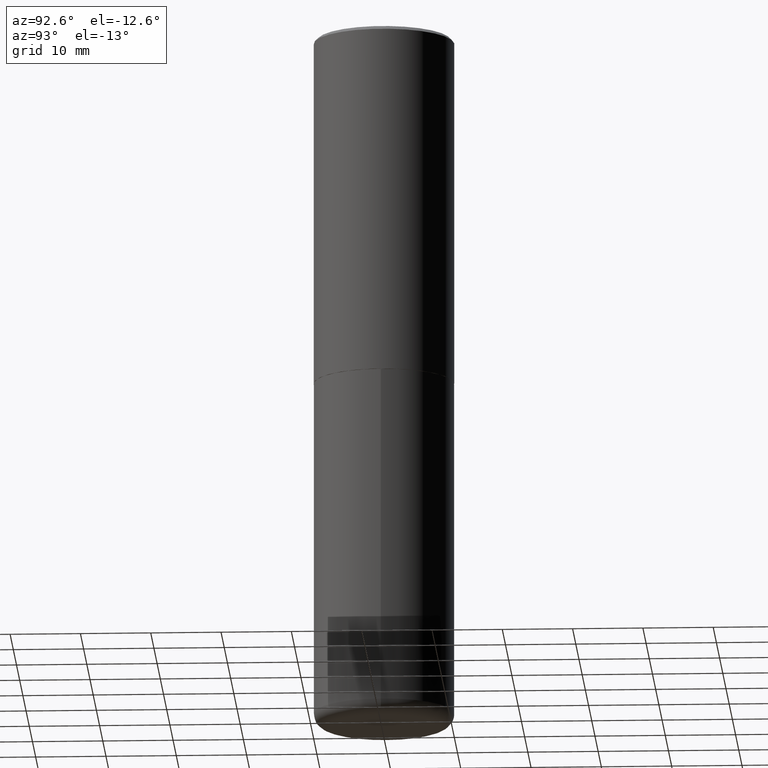
[diagram: clean part render]
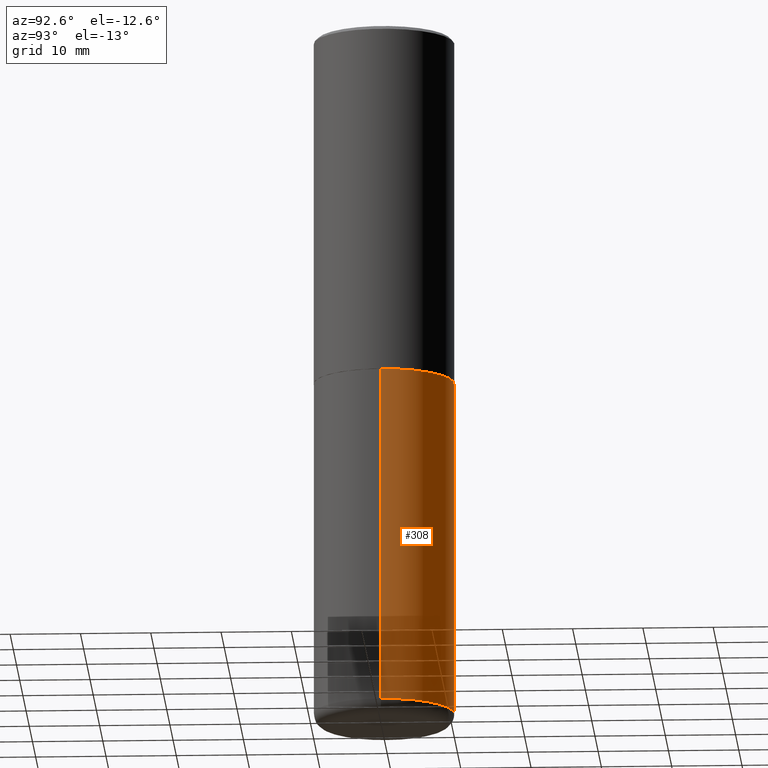
[diagram: same view with one face highlighted and labeled with its STEP entity id]
A machine part, auxiliary view. The second image highlights one B-rep face of the part: STEP entity #308.
In plain terms, the highlighted cylindrical surface (partial cylindrical patch) has radius 10 mm, axis along (-0, 0, 1).
Its self-contained STEP definition (entity closure, byte-faithful):
#31 = EDGE_CURVE ( 'NONE', #399, #339, #192, .T. ) ;
#39 = DIRECTION ( 'NONE',  ( 1.000000000000000000, -6.982962677686265922E-15, 4.876176775795935793E-29 ) ) ;
#51 = VERTEX_POINT ( 'NONE', #88 ) ;
#63 = EDGE_CURVE ( 'NONE', #260, #51, #276, .T. ) ;
#70 = AXIS2_PLACEMENT_3D ( 'NONE', #100, #142, #270 ) ;
#83 = DIRECTION ( 'NONE',  ( 1.000000000000000000, -6.982962677686267499E-15, 0.000000000000000000 ) ) ;
#88 = CARTESIAN_POINT ( 'NONE',  ( -0.3937000000000001054, -1.067377569897099292E-14, -3.858300000000000285 ) ) ;
#100 = CARTESIAN_POINT ( 'NONE',  ( 4.813905344975441835E-29, -6.872981015512731707E-15, -1.968500000000000139 ) ) ;
#104 = LINE ( 'NONE', #297, #134 ) ;
#107 = LINE ( 'NONE', #303, #197 ) ;
#134 = VECTOR ( 'NONE', #175, 39.37007874015748143 ) ;
#142 = DIRECTION ( 'NONE',  ( -2.445468806185136597E-29, 3.491481338843145583E-15, 1.000000000000000000 ) ) ;
#150 = DIRECTION ( 'NONE',  ( -2.445468806185136877E-29, 3.491481338843145188E-15, 1.000000000000000000 ) ) ;
#175 = DIRECTION ( 'NONE',  ( -2.445468806185136877E-29, 3.491481338843145188E-15, 1.000000000000000000 ) ) ;
#177 = ORIENTED_EDGE ( 'NONE', *, *, #354, .F. ) ;
#192 = CIRCLE ( 'NONE', #70, 0.3937000000000000499 ) ;
#193 = ORIENTED_EDGE ( 'NONE', *, *, #400, .T. ) ;
#196 = ORIENTED_EDGE ( 'NONE', *, *, #63, .T. ) ;
#197 = VECTOR ( 'NONE', #150, 39.37007874015748143 ) ;
#214 = CARTESIAN_POINT ( 'NONE',  ( 0.000000000000000000, 0.000000000000000000, 0.000000000000000000 ) ) ;
#241 = AXIS2_PLACEMENT_3D ( 'NONE', #250, #378, #83 ) ;
#250 = CARTESIAN_POINT ( 'NONE',  ( 9.435352294904112142E-29, -1.347118244965850850E-14, -3.858300000000000285 ) ) ;
#260 = VERTEX_POINT ( 'NONE', #388 ) ;
#270 = DIRECTION ( 'NONE',  ( 1.000000000000000000, -6.982962677686265133E-15, 0.000000000000000000 ) ) ;
#276 = CIRCLE ( 'NONE', #241, 0.3937000000000000499 ) ;
#278 = CARTESIAN_POINT ( 'NONE',  ( 0.3937000000000000499, -9.622173421717814924E-15, -1.968500000000000139 ) ) ;
#279 = FACE_OUTER_BOUND ( 'NONE', #327, .T. ) ;
#297 = CARTESIAN_POINT ( 'NONE',  ( 0.3937000000000000499, -2.749192406205083217E-15, 1.919750796630860172E-29 ) ) ;
#301 = ORIENTED_EDGE ( 'NONE', *, *, #31, .F. ) ;
#303 = CARTESIAN_POINT ( 'NONE',  ( -0.3937000000000000499, 2.797406750687514786E-15, -1.936584745033356735E-29 ) ) ;
#308 = ADVANCED_FACE ( 'NONE', ( #279 ), #341, .T. ) ;
#327 = EDGE_LOOP ( 'NONE', ( #196, #193, #301, #177 ) ) ;
#338 = CARTESIAN_POINT ( 'NONE',  ( -0.3937000000000000499, -7.374674981898105316E-15, -1.968500000000000139 ) ) ;
#339 = VERTEX_POINT ( 'NONE', #338 ) ;
#341 = CYLINDRICAL_SURFACE ( 'NONE', #348, 0.3937000000000000499 ) ;
#348 = AXIS2_PLACEMENT_3D ( 'NONE', #214, #397, #39 ) ;
#354 = EDGE_CURVE ( 'NONE', #260, #399, #104, .T. ) ;
#378 = DIRECTION ( 'NONE',  ( -2.445468806185136597E-29, 3.491481338843145583E-15, 1.000000000000000000 ) ) ;
#388 = CARTESIAN_POINT ( 'NONE',  ( 0.3937000000000001054, -1.622037485586359329E-14, -3.858300000000000285 ) ) ;
#397 = DIRECTION ( 'NONE',  ( -2.445468806185136597E-29, 3.491481338843145583E-15, 1.000000000000000000 ) ) ;
#399 = VERTEX_POINT ( 'NONE', #278 ) ;
#400 = EDGE_CURVE ( 'NONE', #51, #339, #107, .T. ) ;